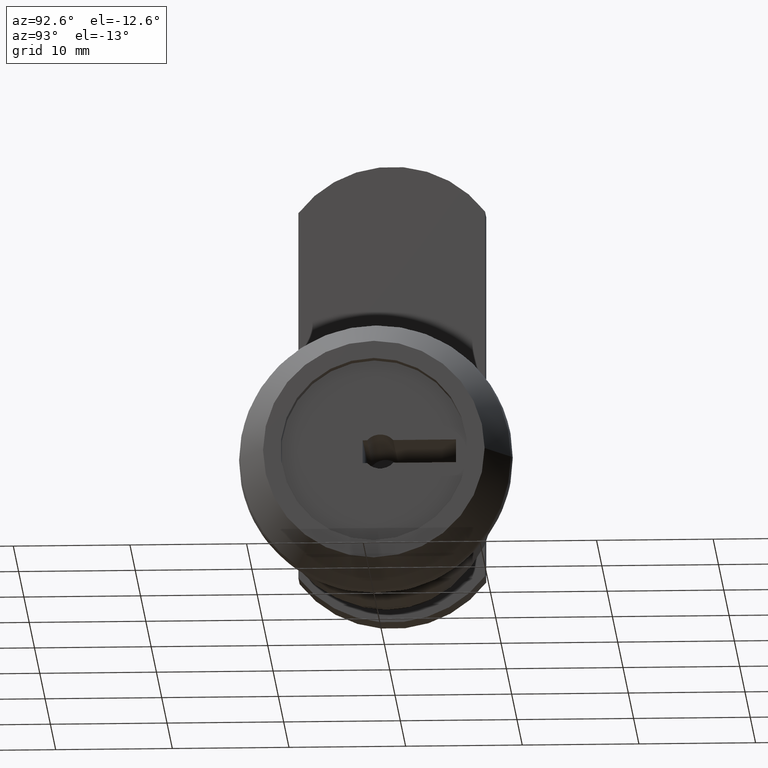
[diagram: clean part render]
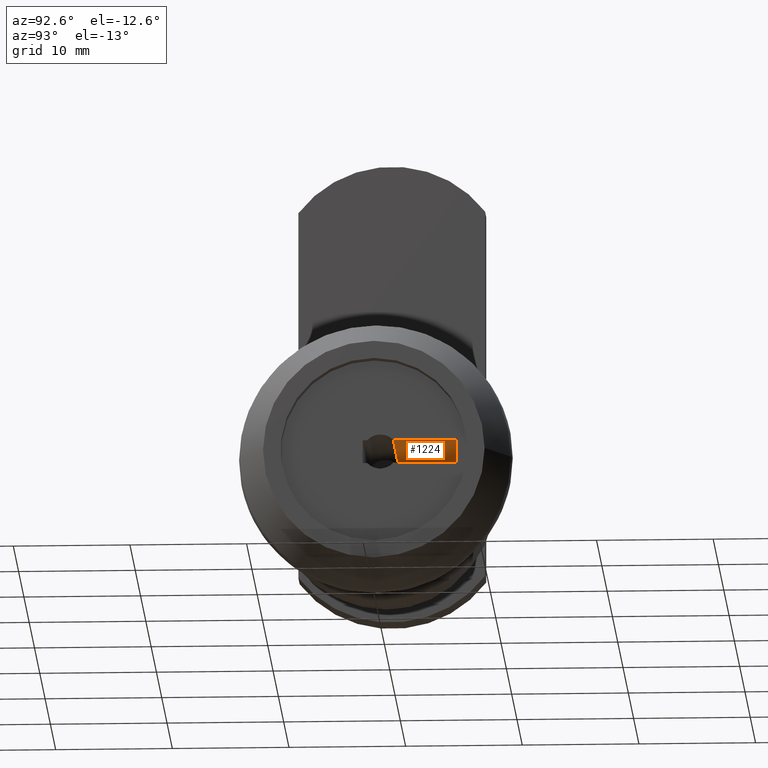
[diagram: same view with one face highlighted and labeled with its STEP entity id]
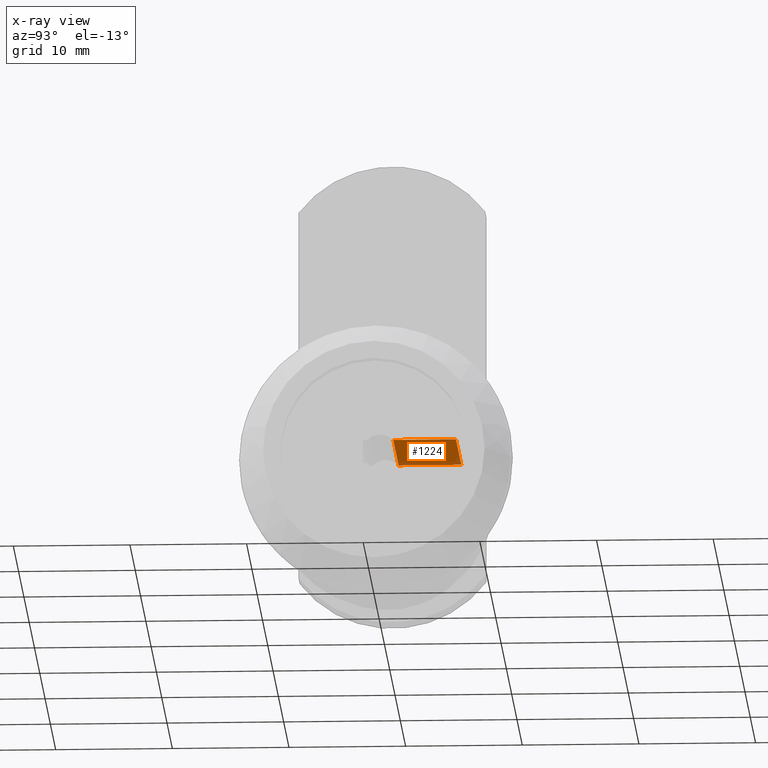
[diagram: x-ray of the same camera — body ghosted, the highlighted face saturated]
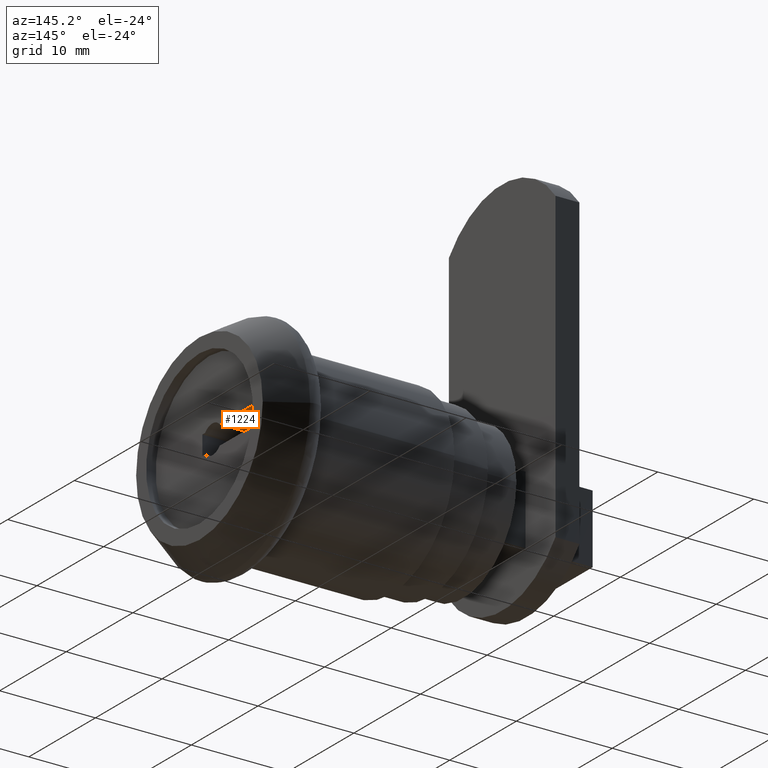
[diagram: same view with one face highlighted and labeled with its STEP entity id]
A machine part, auxiliary view. The second image highlights one B-rep face of the part: STEP entity #1224.
The next image is the same camera in x-ray: the body ghosted, the highlighted face saturated — about 12% of this face is hidden behind the body in this view.
A second angle (auxiliary view) of the same face is appended — the face is thin or edge-on in the first view.
In plain terms, the highlighted planar face has unit normal (0, 0, -1).
Its self-contained STEP definition (entity closure, byte-faithful):
#978=CARTESIAN_POINT('',(-1.0,1.618033988749886,0.999999999999999));
#979=VERTEX_POINT('',#978);
#980=CARTESIAN_POINT('',(-11.000000068700558,1.618033988749886,0.999999999999999));
#981=VERTEX_POINT('',#980);
#982=CARTESIAN_POINT('',(-1.0,1.618033988749886,0.999999999999999));
#983=DIRECTION('',(-1.0,0.0,0.0));
#984=VECTOR('',#983,10.000000068700558);
#985=LINE('',#982,#984);
#986=EDGE_CURVE('',#979,#981,#985,.T.);
#1178=CARTESIAN_POINT('',(-1.0,7.0,1.0));
#1179=VERTEX_POINT('',#1178);
#1186=CARTESIAN_POINT('',(-11.000000068700558,7.0,1.0));
#1187=VERTEX_POINT('',#1186);
#1188=CARTESIAN_POINT('',(-1.0,7.0,1.0));
#1189=DIRECTION('',(-1.0,0.0,0.0));
#1190=VECTOR('',#1189,10.000000068700558);
#1191=LINE('',#1188,#1190);
#1192=EDGE_CURVE('',#1179,#1187,#1191,.T.);
#1203=CARTESIAN_POINT('',(0.0,7.0,1.0));
#1204=DIRECTION('',(0.0,0.0,-1.0));
#1205=DIRECTION('',(0.0,-1.0,0.0));
#1206=AXIS2_PLACEMENT_3D('',#1203,#1204,#1205);
#1207=PLANE('',#1206);
#1208=CARTESIAN_POINT('',(-11.000000068700558,7.0,1.0));
#1209=DIRECTION('',(0.0,-1.0,0.0));
#1210=VECTOR('',#1209,5.381966011250110);
#1211=LINE('',#1208,#1210);
#1212=EDGE_CURVE('',#1187,#981,#1211,.T.);
#1213=ORIENTED_EDGE('',*,*,#1212,.F.);
#1214=ORIENTED_EDGE('',*,*,#1192,.F.);
#1215=CARTESIAN_POINT('',(-1.0,1.618033988749886,0.999999999999999));
#1216=DIRECTION('',(0.0,1.0,0.0));
#1217=VECTOR('',#1216,5.381966011250114);
#1218=LINE('',#1215,#1217);
#1219=EDGE_CURVE('',#979,#1179,#1218,.T.);
#1220=ORIENTED_EDGE('',*,*,#1219,.F.);
#1221=ORIENTED_EDGE('',*,*,#986,.T.);
#1222=EDGE_LOOP('',(#1213,#1214,#1220,#1221));
#1223=FACE_OUTER_BOUND('',#1222,.T.);
#1224=ADVANCED_FACE('',(#1223),#1207,.T.);